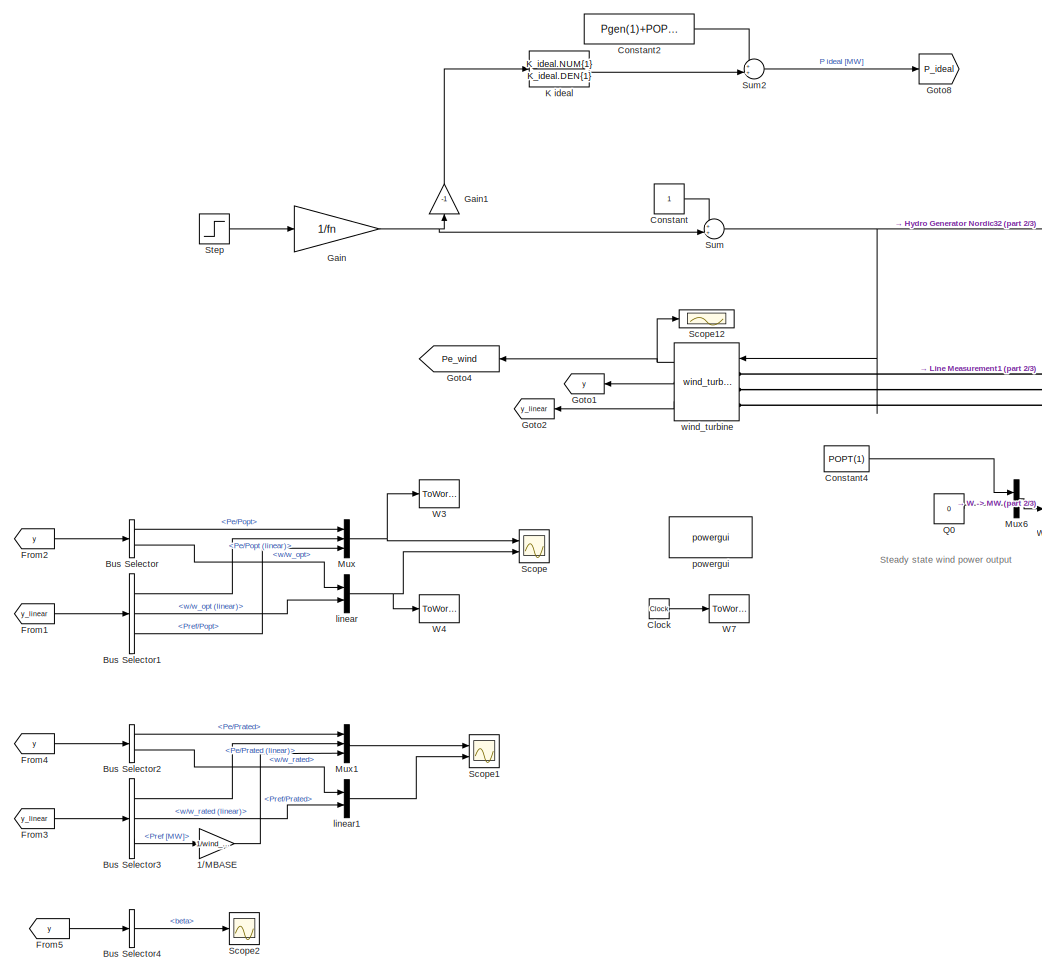
[diagram: root canvas - part 1/3, left side, full height]
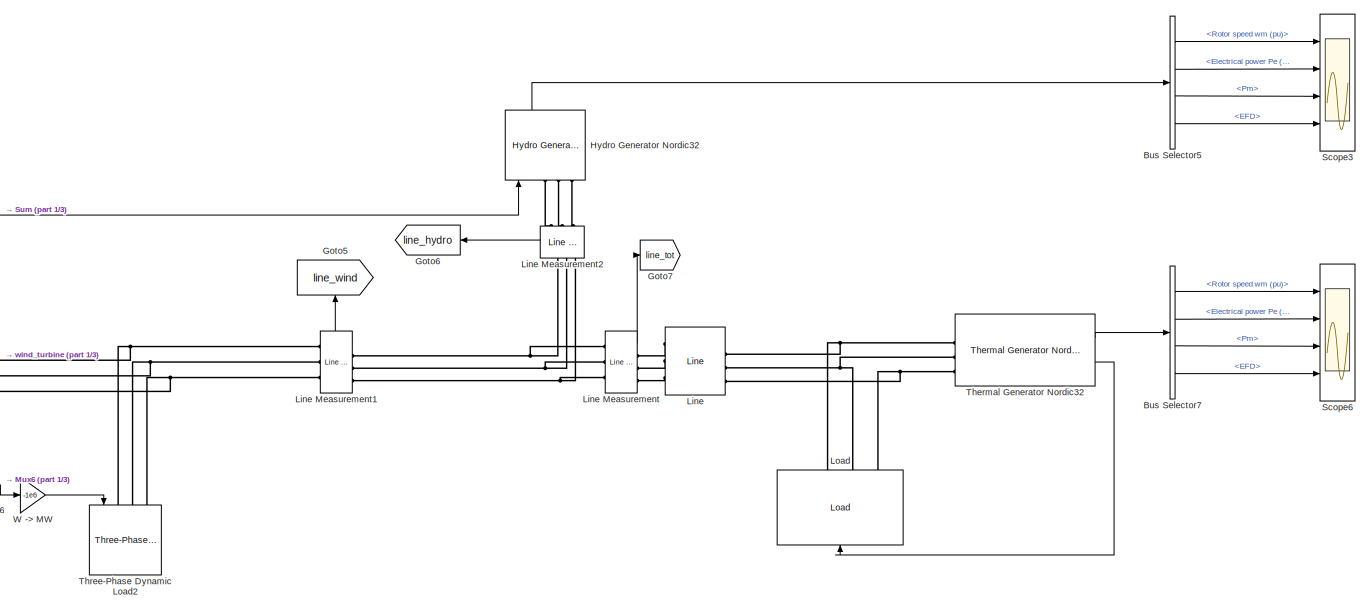
[diagram: root canvas - part 2/3, top right region]
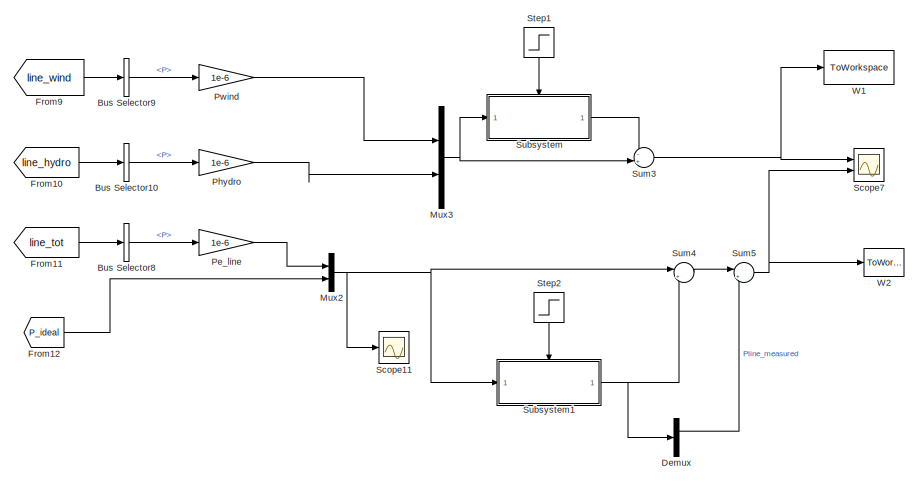
[diagram: root canvas - part 3/3, bottom right region]
MODEL slx_a653a0209394
KIND model
CONFIG AbsTol = 1e-1
CONFIG EnableMultiTasking = on
CONFIG FixedStep = auto
CONFIG MaxStep = 1/60
CONFIG MinStep = auto
CONFIG PreLoadFcn = %load_Nordic32_data;\n
CONFIG RelTol = 1e-2
CONFIG SampleTimeConstraint = Unconstrained
CONFIG Solver = ode15s
CONFIG SolverName = ode15s
CONFIG StartTime = 0.0
CONFIG StopTime = 200
BLOCK [Gain] 1//MBASE
  Gain = 1/wind_turbines.MBASE(1)
BLOCK [BusSelector] Bus Selector
  OutputSignals = Pe/Popt,w/w_opt
  Ports = [1, 2]
BLOCK [BusSelector] Bus Selector1
  OutputSignals = Pe/Popt (linear),w/w_opt (linear),Pref/Popt
  Ports = [1, 3]
BLOCK [BusSelector] Bus Selector10
  OutputSignals = P
  Ports = [1, 1]
BLOCK [BusSelector] Bus Selector2
  OutputSignals = Pe/Prated,w/w_rated
  Ports = [1, 2]
BLOCK [BusSelector] Bus Selector3
  OutputSignals = Pe/Prated (linear),w/w_rated (linear),Pref [MW]
  Ports = [1, 3]
BLOCK [BusSelector] Bus Selector4
  OutputSignals = beta
  Ports = [1, 1]
BLOCK [BusSelector] Bus Selector5
  OutputSignals = Rotor speed  wm  (pu),Electrical power  Pe (pu),Pm,EFD
  Ports = [1, 4]
BLOCK [BusSelector] Bus Selector7
  OutputSignals = Rotor speed  wm  (pu),Electrical power  Pe (pu),Pm,EFD
  Ports = [1, 4]
BLOCK [BusSelector] Bus Selector8
  OutputSignals = P
  Ports = [1, 1]
BLOCK [BusSelector] Bus Selector9
  OutputSignals = P
  Ports = [1, 1]
BLOCK [Clock] Clock
BLOCK [Constant] Constant
BLOCK [Constant] Constant2
  Value = Pgen(1)+POPT(1)
BLOCK [Constant] Constant4
  Value = POPT(1)
BLOCK [Demux] Demux
  Outputs = 2
  Ports = [1, 2]
BLOCK [From] From1
  GotoTag = y_linear
  NameLocation = top
BLOCK [From] From10
  GotoTag = line_hydro
  NameLocation = top
BLOCK [From] From11
  GotoTag = line_tot
BLOCK [From] From12
  GotoTag = P_ideal
BLOCK [From] From2
  GotoTag = y
  NameLocation = top
BLOCK [From] From3
  GotoTag = y_linear
  NameLocation = top
BLOCK [From] From4
  GotoTag = y
  NameLocation = top
BLOCK [From] From5
  GotoTag = y
  NameLocation = top
BLOCK [From] From9
  GotoTag = line_wind
BLOCK [Gain] Gain
  Gain = 1/fn
BLOCK [Gain] Gain1
  Gain = -1
  NameLocation = right
BLOCK [Goto] Goto1
  GotoTag = y
  NameLocation = top
BLOCK [Goto] Goto2
  GotoTag = y_linear
  NameLocation = top
BLOCK [Goto] Goto4
  GotoTag = Pe_wind
  NameLocation = top
BLOCK [Goto] Goto5
  GotoTag = line_wind
  NameLocation = right
BLOCK [Goto] Goto6
  GotoTag = line_hydro
  NameLocation = top
BLOCK [Goto] Goto7
  GotoTag = line_tot
BLOCK [Goto] Goto8
  GotoTag = P_ideal
BLOCK [Reference] Hydro Generator Nordic32  REF=Nordic32_Lib/Hydro Generator
Nordic32
  NameLocation = left
  Ports = [2, 2, 0, 0, 0, 3]
  SourceBlock = Nordic32_Lib/Hydro Generator\nNordic32
BLOCK [TransferFcn] K ideal
  Denominator = K_ideal.DEN{1}
  Numerator = K_ideal.NUM{1}
BLOCK [Reference] Line  REF=Nordic32_Lib/Line
  Ports = [0, 1, 0, 0, 0, 3, 3]
  SourceBlock = Nordic32_Lib/Line
BLOCK [Reference] Line Measurement  REF=Nordic32_Lib/Line 
Measurement
  Ports = [0, 1, 0, 0, 0, 3, 3]
  SourceBlock = Nordic32_Lib/Line \nMeasurement
BLOCK [Reference] Line Measurement1  REF=Nordic32_Lib/Line 
Measurement
  Ports = [0, 1, 0, 0, 0, 3, 3]
  SourceBlock = Nordic32_Lib/Line \nMeasurement
BLOCK [Reference] Line Measurement2  REF=Nordic32_Lib/Line 
Measurement
  NameLocation = left
  Ports = [0, 1, 0, 0, 0, 3, 3]
  SourceBlock = Nordic32_Lib/Line \nMeasurement
BLOCK [Reference] Load  REF=Nordic32_Lib/Load
  NameLocation = right
  Ports = [1, 1, 0, 0, 0, 0, 3]
  SourceBlock = Nordic32_Lib/Load
BLOCK [Mux] Mux
  DisplayOption = bar
  Inputs = 3
  Ports = [3, 1]
BLOCK [Mux] Mux1
  DisplayOption = bar
  Inputs = 3
  Ports = [3, 1]
BLOCK [Mux] Mux2
  DisplayOption = bar
  Inputs = 2
  Ports = [2, 1]
BLOCK [Mux] Mux3
  DisplayOption = bar
  Inputs = 2
  Ports = [2, 1]
BLOCK [Mux] Mux6
  DisplayOption = bar
  Inputs = 2
  Ports = [2, 1]
BLOCK [Gain] Pe_line
  Gain = 1e-6
BLOCK [Gain] Phydro
  Gain = 1e-6
BLOCK [Gain] Pwind
  Gain = 1e-6
BLOCK [Constant] Q0
  Value = 0
BLOCK [Scope] Scope
  Floating = off
  NumInputPorts = 2
  Ports = [2]
  ScopeSpecificationString = Simulink.scopes.TimeScopeBlockCfg('CurrentConfiguration', extmgr.ConfigurationSet(extmgr.Configuration('Core','General UI',true),extmgr.Configuration('Core','Source UI',true),extmgr.Configuration('Sources','WiredSimulink',true,'DataLoggingVariableName','ScopeData1'),extmgr.Configuration('Visuals','Time Domain',true,'SerializedDisplays',{struct('MinYLimReal','0.66455','MaxYLimReal','1.60819','YLabe...<+2066ch>
BLOCK [Scope] Scope1
  Floating = off
  NumInputPorts = 2
  Ports = [2]
  ScopeSpecificationString = Simulink.scopes.TimeScopeBlockCfg('CurrentConfiguration', extmgr.ConfigurationSet(extmgr.Configuration('Core','General UI',true),extmgr.Configuration('Core','Source UI',true),extmgr.Configuration('Sources','WiredSimulink',true,'DataLoggingVariableName','ScopeData2'),extmgr.Configuration('Visuals','Time Domain',true,'SerializedDisplays',{struct('MinYLimReal','0.26776','MaxYLimReal','0.56668','YLabe...<+2097ch>
BLOCK [Scope] Scope11
  Floating = off
  NumInputPorts = 1
  Ports = [1]
  ScopeSpecificationString = Simulink.scopes.TimeScopeBlockCfg('CurrentConfiguration', extmgr.ConfigurationSet(extmgr.Configuration('Core','General UI',true),extmgr.Configuration('Core','Source UI',true),extmgr.Configuration('Sources','WiredSimulink',true,'DataLoggingVariableName','ScopeData9'),extmgr.Configuration('Visuals','Time Domain',true,'SerializedDisplays',{struct('MinYLimReal','77.60572','MaxYLimReal','99.54658','YLa...<+1389ch>
BLOCK [Scope] Scope12
  Floating = off
  NumInputPorts = 1
  Ports = [1]
  ScopeSpecificationString = Simulink.scopes.TimeScopeBlockCfg('CurrentConfiguration', extmgr.ConfigurationSet(extmgr.Configuration('Core','General UI',true),extmgr.Configuration('Core','Source UI',true),extmgr.Configuration('Sources','WiredSimulink',true,'DataLoggingVariableName','ScopeData4'),extmgr.Configuration('Visuals','Time Domain',true,'SerializedDisplays',{struct('MinYLimReal','5.37008','MaxYLimReal','10.92322','YLab...<+1416ch>
BLOCK [Scope] Scope2
  Floating = off
  NumInputPorts = 1
  Ports = [1]
  ScopeSpecificationString = Simulink.scopes.TimeScopeBlockCfg('CurrentConfiguration', extmgr.ConfigurationSet(extmgr.Configuration('Core','General UI',true),extmgr.Configuration('Core','Source UI',true),extmgr.Configuration('Sources','WiredSimulink',true,'DataLoggingVariableName','ScopeData3'),extmgr.Configuration('Visuals','Time Domain',true,'SerializedDisplays',{struct('MinYLimReal','-1.00000','MaxYLimReal','1.00000','YLab...<+1396ch>
BLOCK [Scope] Scope3
  Floating = off
  NumInputPorts = 4
  Ports = [4]
  ScopeSpecificationString = Simulink.scopes.TimeScopeBlockCfg('CurrentConfiguration', extmgr.ConfigurationSet(extmgr.Configuration('Core','General UI',true),extmgr.Configuration('Core','Source UI',true),extmgr.Configuration('Sources','WiredSimulink',true,'DataLoggingVariableName','ScopeData1'),extmgr.Configuration('Visuals','Time Domain',true,'SerializedDisplays',{struct('MinYLimReal','0.99991','MaxYLimReal','1.00085','YLabe...<+3441ch>
BLOCK [Scope] Scope6
  Floating = off
  NumInputPorts = 4
  Ports = [4]
  ScopeSpecificationString = Simulink.scopes.TimeScopeBlockCfg('CurrentConfiguration', extmgr.ConfigurationSet(extmgr.Configuration('Core','General UI',true),extmgr.Configuration('Core','Source UI',true),extmgr.Configuration('Sources','WiredSimulink',true,'DataLoggingVariableName','ScopeData3'),extmgr.Configuration('Visuals','Time Domain',true,'SerializedDisplays',{struct('MinYLimReal','0.99991','MaxYLimReal','1.00085','YLabe...<+3441ch>
BLOCK [Scope] Scope7
  Floating = off
  NumInputPorts = 2
  Ports = [2]
  ScopeSpecificationString = Simulink.scopes.TimeScopeBlockCfg('CurrentConfiguration', extmgr.ConfigurationSet(extmgr.Configuration('Core','General UI',true),extmgr.Configuration('Core','Source UI',true),extmgr.Configuration('Sources','WiredSimulink',true,'DataLoggingVariableName','ScopeData6'),extmgr.Configuration('Visuals','Time Domain',true,'SerializedDisplays',{struct('MinYLimReal','-2.75662','MaxYLimReal','12.56125','YLa...<+2066ch>
BLOCK [Step] Step
  After = -0.5
  SampleTime = 0
  Time = time_event
BLOCK [Step] Step1
  After = 0
  Before = 1
  NameLocation = left
  SampleTime = 0
  Time = time_activate_wind+1
BLOCK [Step] Step2
  After = 0
  Before = 1
  NameLocation = left
  SampleTime = 0
  Time = time_activate_wind+1
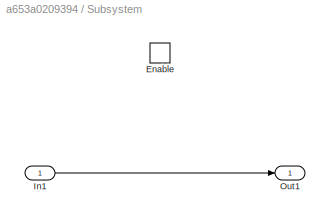
BLOCK [SubSystem] Subsystem
  Ports = [1, 1, 1]
  RequestExecContextInheritance = off
BLOCK [EnablePort] Subsystem/Enable
  Ports = []
BLOCK [Inport] Subsystem/In1
BLOCK [Outport] Subsystem/Out1
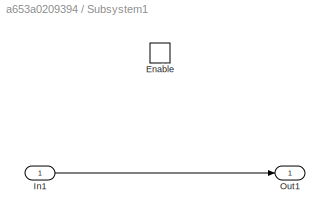
BLOCK [SubSystem] Subsystem1
  Ports = [1, 1, 1]
  RequestExecContextInheritance = off
BLOCK [EnablePort] Subsystem1/Enable
  Ports = []
BLOCK [Inport] Subsystem1/In1
BLOCK [Outport] Subsystem1/Out1
BLOCK [Sum] Sum
  Inputs = ++|
  Ports = [2, 1]
BLOCK [Sum] Sum2
  Inputs = ++|
  Ports = [2, 1]
BLOCK [Sum] Sum3
  Inputs = -+|
  Ports = [2, 1]
BLOCK [Sum] Sum4
  Inputs = |+-
  Ports = [2, 1]
BLOCK [Sum] Sum5
  Inputs = |++
  Ports = [2, 1]
BLOCK [Reference] Thermal Generator Nordic32  REF=Nordic32_Lib/Thermal Generator
Nordic32
  Ports = [1, 2, 0, 0, 0, 3]
  SourceBlock = Nordic32_Lib/Thermal Generator\nNordic32
BLOCK [Reference] Three-Phase Dynamic Load2  REF=powerlib/Elements/Three-Phase
Dynamic Load
  NameLocation = left
  Ports = [1, 1, 0, 0, 0, 3]
  SourceBlock = powerlib/Elements/Three-Phase\nDynamic Load
  SourceProductBaseCode = PS
  SourceType = Three-Phase Dynamic Load
BLOCK [Gain] W -> MW
  Gain = -1e6
  NameLocation = top
BLOCK [ToWorkspace] W1
  MaxDataPoints = inf
  Ports = [1]
  SampleTime = 1/60
  VariableName = Pe_wind_hydro
BLOCK [ToWorkspace] W2
  MaxDataPoints = inf
  Ports = [1]
  SampleTime = 1/60
  VariableName = Pe_tot
BLOCK [ToWorkspace] W3
  MaxDataPoints = inf
  Ports = [1]
  SampleTime = 1/60
  VariableName = Pe
BLOCK [ToWorkspace] W4
  MaxDataPoints = inf
  Ports = [1]
  SampleTime = 1/60
  VariableName = w_rot
BLOCK [ToWorkspace] W7
  MaxDataPoints = inf
  Ports = [1]
  SampleTime = 1/60
  VariableName = t
BLOCK [Mux] linear
  DisplayOption = bar
  Inputs = 2
  Ports = [2, 1]
BLOCK [Mux] linear1
  DisplayOption = bar
  Inputs = 2
  Ports = [2, 1]
BLOCK [Reference] powergui  REF=powerlib/powergui
  Ports = []
  Priority = 2
  SourceBlock = powerlib/powergui
  SourceProductBaseCode = PS
  SourceType = PSB option menu block
BLOCK [Reference] wind_turbine  REF=Nordic32_Lib/wind_turbine
  Ports = [1, 3, 0, 0, 0, 3]
  SourceBlock = Nordic32_Lib/wind_turbine
ANNOTATION (root): Steady state wind power output
LINE 1//MBASE:1 -> Mux1:3
LINE Bus Selector10:1 -> Phydro:1
LINE Bus Selector1:1 -> Mux:2
LINE Bus Selector1:2 -> linear:2
LINE Bus Selector1:3 -> Mux:3
LINE Bus Selector2:1 -> Mux1:1
LINE Bus Selector2:2 -> linear1:1
LINE Bus Selector3:1 -> Mux1:2
LINE Bus Selector3:2 -> linear1:2
LINE Bus Selector3:3 -> 1//MBASE:1
LINE Bus Selector4:1 -> Scope2:1
LINE Bus Selector5:1 -> Scope3:1
LINE Bus Selector5:2 -> Scope3:2
LINE Bus Selector5:3 -> Scope3:3
LINE Bus Selector5:4 -> Scope3:4
LINE Bus Selector7:1 -> Scope6:1
LINE Bus Selector7:2 -> Scope6:2
LINE Bus Selector7:3 -> Scope6:3
LINE Bus Selector7:4 -> Scope6:4
LINE Bus Selector8:1 -> Pe_line:1
LINE Bus Selector9:1 -> Pwind:1
LINE Bus Selector:1 -> Mux:1
LINE Bus Selector:2 -> linear:1
LINE Clock:1 -> W7:1
LINE Constant2:1 -> Sum2:1
LINE Constant4:1 -> Mux6:1
LINE Constant:1 -> Sum:1
LINE Demux:1 -> Sum5:2
LINE From10:1 -> Bus Selector10:1
LINE From11:1 -> Bus Selector8:1
LINE From12:1 -> Mux2:2
LINE From1:1 -> Bus Selector1:1
LINE From2:1 -> Bus Selector:1
LINE From3:1 -> Bus Selector3:1
LINE From4:1 -> Bus Selector2:1
LINE From5:1 -> Bus Selector4:1
LINE From9:1 -> Bus Selector9:1
LINE Gain1:1 -> K ideal:1
NET Gain:1 -> Gain1:1, Sum:2
LINE Hydro Generator Nordic32:1 -> Bus Selector5:1
LINE K ideal:1 -> Sum2:2
LINE Line Measurement1:1 -> Goto5:1
LINE Line Measurement2:1 -> Goto6:1
LINE Line Measurement:1 -> Goto7:1
LINE Mux1:1 -> Scope1:1
NET Mux2:1 -> Scope11:1, Subsystem1:1, Sum4:1
NET Mux3:1 -> Subsystem:1, Sum3:2
LINE Mux6:1 -> W -> MW:1
NET Mux:1 -> Scope:1, W3:1
LINE Pe_line:1 -> Mux2:1
LINE Phydro:1 -> Mux3:2
LINE Pwind:1 -> Mux3:1
LINE Q0:1 -> Mux6:2
LINE Step1:1 -> Subsystem:enable
LINE Step2:1 -> Subsystem1:enable
LINE Step:1 -> Gain:1
LINE Subsystem/In1:1 -> Subsystem/Out1:1
LINE Subsystem1/In1:1 -> Subsystem1/Out1:1
NET Subsystem1:1 -> Demux:1, Sum4:2
LINE Subsystem:1 -> Sum3:1
LINE Sum2:1 -> Goto8:1
NET Sum3:1 -> Scope7:1, W1:1
LINE Sum4:1 -> Sum5:1
NET Sum5:1 -> Scope7:2, W2:1
NET Sum:1 -> Hydro Generator Nordic32:1, wind_turbine:1
LINE Thermal Generator Nordic32:1 -> Bus Selector7:1
LINE Thermal Generator Nordic32:2 -> Load:1
LINE W -> MW:1 -> Three-Phase Dynamic Load2:1
LINE linear1:1 -> Scope1:2
NET linear:1 -> Scope:2, W4:1
NET wind_turbine:1 -> Goto4:1, Scope12:1
LINE wind_turbine:2 -> Goto1:1
LINE wind_turbine:3 -> Goto2:1
PLINE Hydro Generator Nordic32:LConn1 -- Line Measurement2:LConn1
PLINE Hydro Generator Nordic32:LConn2 -- Line Measurement2:LConn2
PLINE Hydro Generator Nordic32:LConn3 -- Line Measurement2:LConn3
PNET net1: Line Measurement1:LConn1 -- Three-Phase Dynamic Load2:LConn1 -- wind_turbine:LConn1
PNET net2: Line Measurement1:LConn2 -- Three-Phase Dynamic Load2:LConn2 -- wind_turbine:LConn2
PNET net3: Line Measurement1:LConn3 -- Three-Phase Dynamic Load2:LConn3 -- wind_turbine:LConn3
PNET net4: Line Measurement1:RConn1 -- Line Measurement2:RConn1 -- Line Measurement:LConn1
PNET net5: Line Measurement1:RConn2 -- Line Measurement2:RConn2 -- Line Measurement:LConn2
PNET net6: Line Measurement1:RConn3 -- Line Measurement2:RConn3 -- Line Measurement:LConn3
PLINE Line Measurement:RConn1 -- Line:LConn1
PLINE Line Measurement:RConn2 -- Line:LConn2
PLINE Line Measurement:RConn3 -- Line:LConn3
PNET net7: Line:RConn1 -- Load:RConn1 -- Thermal Generator Nordic32:LConn1
PNET net8: Line:RConn2 -- Load:RConn2 -- Thermal Generator Nordic32:LConn2
PNET net9: Line:RConn3 -- Load:RConn3 -- Thermal Generator Nordic32:LConn3
note: NET lines group one-source signal fan-out (src -> all destinations, sorted); 1:1 wires keep LINE; PNET lines group multi-terminal physical nets as a canonical sorted terminal list (undirected conserving connections); 2-terminal nets keep the pairwise PLINE form
